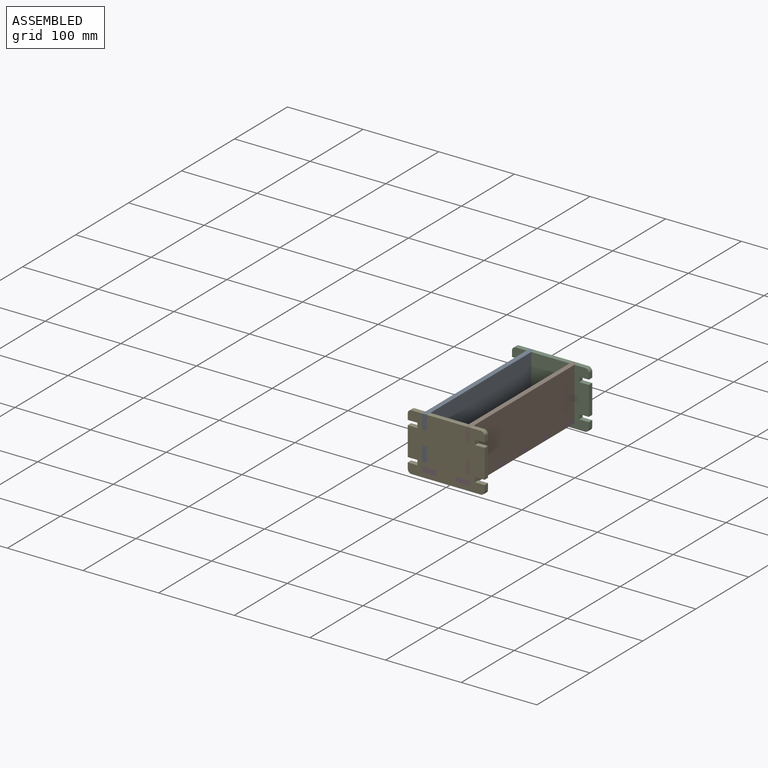
[diagram: assembled view]
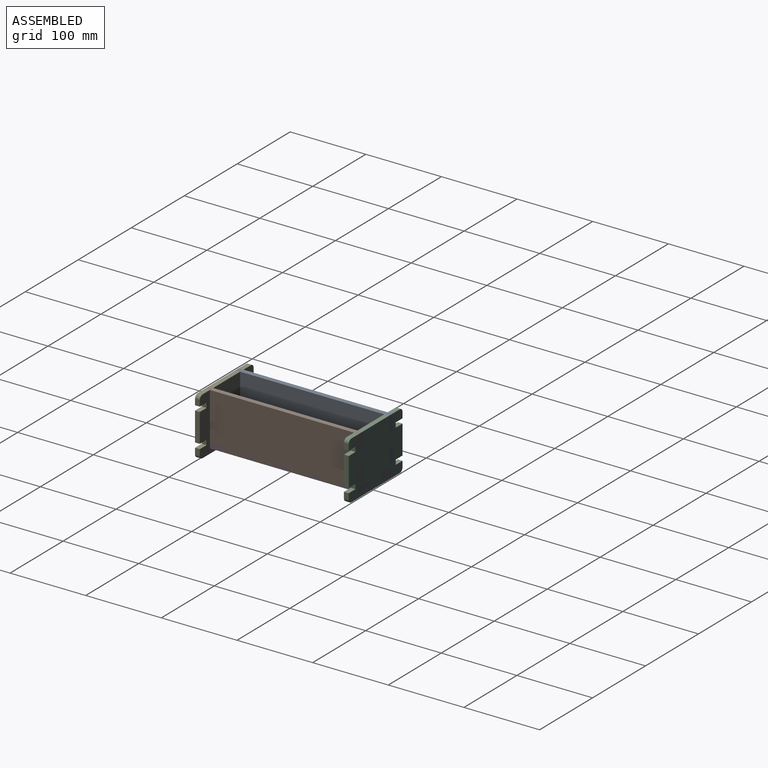
[diagram: assembled view, second angle]
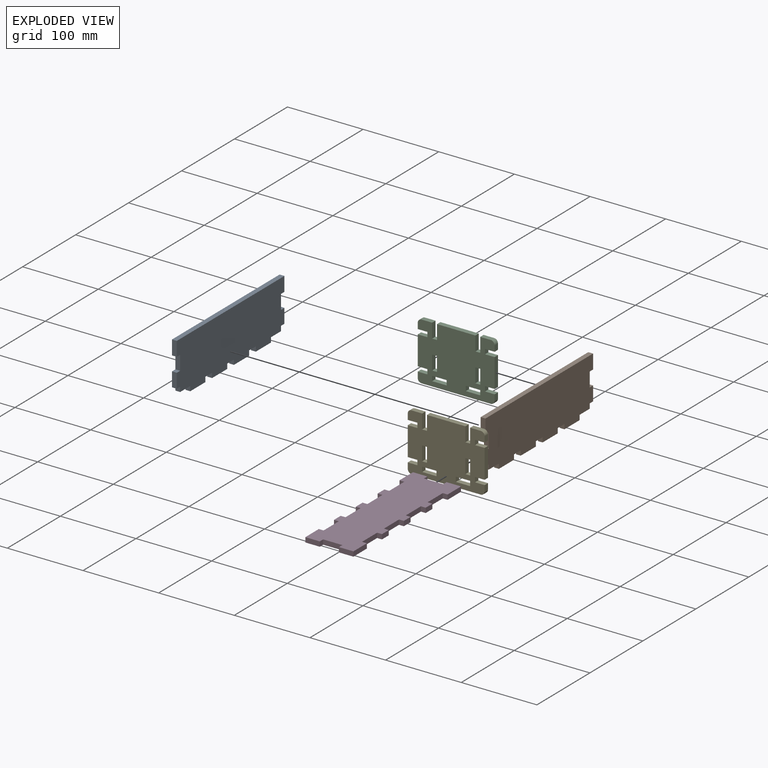
[diagram: exploded view]
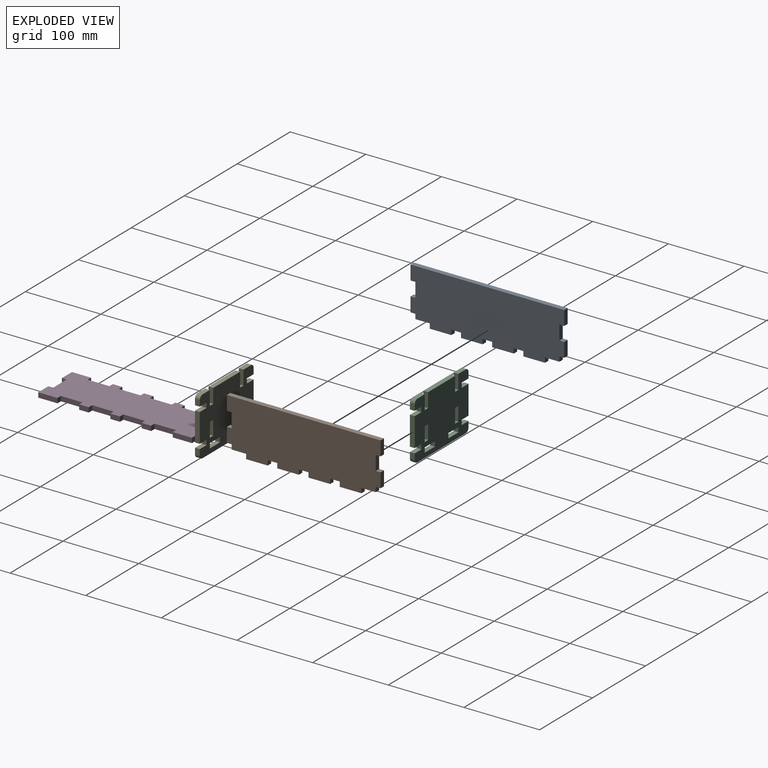
[diagram: exploded view, second angle]
ASSEMBLY  parts=5 mates=12
PART A: 34 faces, bbox 6.4x203.2x69.9 mm
  f0: plane 28.58x6.35mm, normal (0,0,-1), area 181.5mm2, adj f6,f7,f25,f30
  f1: plane 28.58x6.35mm, normal (0,0,-1), area 181.5mm2, adj f6,f7,f22,f24
  f2: plane 28.58x6.35mm, normal (0,0,-1), area 181.5mm2, adj f6,f7,f18,f21
  f3: plane 28.58x6.35mm, normal (0,0,-1), area 181.5mm2, adj f6,f7,f14,f20
  f4: plane 19.05x6.35mm, normal (0,1,0), area 121mm2, adj f6,f7,f12,f17
  f5: plane 19.05x6.35mm, normal (0,-1,0), area 121mm2, adj f6,f7,f27,f33
  f6: plane 203.2x69.85mm, normal (-1,0,0), area 13306.4mm2, adj f0,f1,f2,f3,f4,f5,f8,f9
  f7: plane 203.2x69.85mm, normal (1,0,0), area 13306.4mm2, adj f0,f1,f2,f3,f4,f5,f8,f9
  f8: plane 203.2x6.35mm, normal (0,0,1), area 1290.3mm2, adj f6,f7,f9,f10
  f9: plane 19.05x6.35mm, normal (0,1,0), area 121mm2, adj f6,f7,f8,f11
  f10: plane 19.05x6.35mm, normal (0,-1,0), area 121mm2, adj f6,f7,f8,f31
  f11: plane 6.35x6.35mm, normal (0,0,-1), area 40.3mm2, adj f6,f7,f9,f13
  f12: plane 6.35x6.35mm, normal (0,0,1), area 40.3mm2, adj f4,f6,f7,f13
  f13: plane 19.05x6.35mm, normal (0,1,0), area 121mm2, adj f6,f7,f11,f12
  f14: plane 6.35x6.35mm, normal (0,1,0), area 40.3mm2, adj f3,f6,f7,f15
  f15: plane 19.05x6.35mm, normal (0,0,-1), area 121mm2, adj f6,f7,f14,f16
  f16: plane 6.35x6.35mm, normal (0,1,0), area 40.3mm2, adj f6,f7,f15,f17
  f17: plane 6.35x6.35mm, normal (0,0,-1), area 40.3mm2, adj f4,f6,f7,f16
  f18: plane 6.35x6.35mm, normal (0,1,0), area 40.3mm2, adj f2,f6,f7,f19
  f19: plane 12.7x6.35mm, normal (0,0,-1), area 80.6mm2, adj f6,f7,f18,f20
  f20: plane 6.35x6.35mm, normal (0,-1,0), area 40.3mm2, adj f3,f6,f7,f19
  f21: plane 6.35x6.35mm, normal (0,-1,0), area 40.3mm2, adj f2,f6,f7,f23
  f22: plane 6.35x6.35mm, normal (0,1,0), area 40.3mm2, adj f1,f6,f7,f23
  f23: plane 12.7x6.35mm, normal (0,0,-1), area 80.6mm2, adj f6,f7,f21,f22
  f24: plane 6.35x6.35mm, normal (0,-1,0), area 40.3mm2, adj f1,f6,f7,f26
  f25: plane 6.35x6.35mm, normal (0,1,0), area 40.3mm2, adj f0,f6,f7,f26
  f26: plane 12.7x6.35mm, normal (0,0,-1), area 80.6mm2, adj f6,f7,f24,f25
  f27: plane 6.35x6.35mm, normal (0,0,-1), area 40.3mm2, adj f5,f6,f7,f28
  f28: plane 6.35x6.35mm, normal (0,-1,0), area 40.3mm2, adj f6,f7,f27,f29
  f29: plane 19.05x6.35mm, normal (0,0,-1), area 121mm2, adj f6,f7,f28,f30
  f30: plane 6.35x6.35mm, normal (0,-1,0), area 40.3mm2, adj f0,f6,f7,f29
  f31: plane 6.35x6.35mm, normal (0,0,-1), area 40.3mm2, adj f6,f7,f10,f32
  f32: plane 19.05x6.35mm, normal (0,-1,0), area 121mm2, adj f6,f7,f31,f33
  f33: plane 6.35x6.35mm, normal (0,0,1), area 40.3mm2, adj f5,f6,f7,f32
PART B: same geometry as A
PART C: 50 faces, bbox 101.6x6.4x76.2 mm
  f0: plane 50.8x6.35mm, normal (0,0,1), area 322.6mm2, adj f6,f7,f26,f43
  f1: plane 13.97x6.35mm, normal (0,0,1), area 88.7mm2, adj f6,f7,f24,f49
  f2: plane 7.62x6.35mm, normal (-1,0,0), area 48.4mm2, adj f6,f7,f19,f46
  f3: plane 38.1x6.35mm, normal (-1,0,0), area 241.9mm2, adj f6,f7,f13,f18
  f4: plane 7.62x6.35mm, normal (1,0,0), area 48.4mm2, adj f6,f7,f21,f48
  f5: plane 38.1x6.35mm, normal (1,0,0), area 241.9mm2, adj f6,f7,f15,f23
  f6: plane 101.6x76.2mm, normal (0,-1,0), area 6671.4mm2, adj f0,f1,f2,f3,f4,f5,f8,f9
  f7: plane 101.6x76.2mm, normal (0,1,0), area 6671.4mm2, adj f0,f1,f2,f3,f4,f5,f8,f9
  f8: plane 7.62x6.35mm, normal (-1,0,0), area 48.4mm2, adj f6,f7,f12,f49
  f9: plane 91.44x6.35mm, normal (0,0,-1), area 580.6mm2, adj f6,f7,f46,f47
  f10: plane 7.62x6.35mm, normal (1,0,0), area 48.4mm2, adj f6,f7,f17,f47
  f11: plane 13.97x6.35mm, normal (0,0,1), area 88.7mm2, adj f6,f7,f45,f48
  f12: plane 12.7x6.35mm, normal (0,0,-1), area 80.6mm2, adj f6,f7,f8,f14
  f13: plane 12.7x6.35mm, normal (0,0,1), area 80.6mm2, adj f3,f6,f7,f14
  f14: plane 6.35x6.35mm, normal (-1,0,0), area 40.3mm2, adj f6,f7,f12,f13
  f15: plane 12.7x6.35mm, normal (0,0,-1), area 80.6mm2, adj f5,f6,f7,f16
  f16: plane 6.35x6.35mm, normal (1,0,0), area 40.3mm2, adj f6,f7,f15,f17
  f17: plane 12.7x6.35mm, normal (0,0,1), area 80.6mm2, adj f6,f7,f10,f16
  f18: plane 12.7x6.35mm, normal (0,0,-1), area 80.6mm2, adj f3,f6,f7,f20
  f19: plane 12.7x6.35mm, normal (0,0,1), area 80.6mm2, adj f2,f6,f7,f20
  f20: plane 6.35x6.35mm, normal (-1,0,0), area 40.3mm2, adj f6,f7,f18,f19
  f21: plane 12.7x6.35mm, normal (0,0,-1), area 80.6mm2, adj f4,f6,f7,f22
  f22: plane 6.35x6.35mm, normal (1,0,0), area 40.3mm2, adj f6,f7,f21,f23
  f23: plane 12.7x6.35mm, normal (0,0,1), area 80.6mm2, adj f5,f6,f7,f22
  f24: plane 19.05x6.35mm, normal (1,0,0), area 121mm2, adj f1,f6,f7,f25
  f25: plane 6.35x6.35mm, normal (0,0,1), area 40.3mm2, adj f6,f7,f24,f26
  f26: plane 19.05x6.35mm, normal (-1,0,0), area 121mm2, adj f0,f6,f7,f25
  f27: plane 19.05x6.35mm, normal (1,0,0), area 121mm2, adj f6,f7,f28,f29
  f28: plane 6.35x6.35mm, normal (0,0,-1), area 40.3mm2, adj f6,f7,f27,f30
  f29: plane 6.35x6.35mm, normal (0,0,1), area 40.3mm2, adj f6,f7,f27,f30
  f30: plane 19.05x6.35mm, normal (-1,0,0), area 121mm2, adj f6,f7,f28,f29
  f31: plane 6.35x6.35mm, normal (1,0,0), area 40.3mm2, adj f6,f7,f32,f33
  f32: plane 19.05x6.35mm, normal (0,0,-1), area 121mm2, adj f6,f7,f31,f34
  f33: plane 19.05x6.35mm, normal (0,0,1), area 121mm2, adj f6,f7,f31,f34
  f34: plane 6.35x6.35mm, normal (-1,0,0), area 40.3mm2, adj f6,f7,f32,f33
  f35: plane 6.35x6.35mm, normal (1,0,0), area 40.3mm2, adj f6,f7,f36,f37
  f36: plane 19.05x6.35mm, normal (0,0,-1), area 121mm2, adj f6,f7,f35,f38
  f37: plane 19.05x6.35mm, normal (0,0,1), area 121mm2, adj f6,f7,f35,f38
  f38: plane 6.35x6.35mm, normal (-1,0,0), area 40.3mm2, adj f6,f7,f36,f37
  f39: plane 19.05x6.35mm, normal (1,0,0), area 121mm2, adj f6,f7,f40,f41
  f40: plane 6.35x6.35mm, normal (0,0,-1), area 40.3mm2, adj f6,f7,f39,f42
  f41: plane 6.35x6.35mm, normal (0,0,1), area 40.3mm2, adj f6,f7,f39,f42
  f42: plane 19.05x6.35mm, normal (-1,0,0), area 121mm2, adj f6,f7,f40,f41
  f43: plane 19.05x6.35mm, normal (1,0,0), area 121mm2, adj f0,f6,f7,f44
  f44: plane 6.35x6.35mm, normal (0,0,1), area 40.3mm2, adj f6,f7,f43,f45
  f45: plane 19.05x6.35mm, normal (-1,0,0), area 121mm2, adj f6,f7,f11,f44
  f46: cylinder r=5.08mm len=6.35mm, axis (0,1,0), area 50.7mm2, adj f2,f6,f7,f9
  f47: cylinder r=5.08mm len=6.35mm, axis (0,1,0), area 50.7mm2, adj f6,f7,f9,f10
  f48: cylinder r=5.08mm len=6.35mm, axis (0,1,0), area 50.7mm2, adj f4,f6,f7,f11
  f49: cylinder r=5.08mm len=6.35mm, axis (0,1,0), area 50.7mm2, adj f1,f6,f7,f8
PART D: 46 faces, bbox 63.5x203.2x6.4 mm
  f0: plane 25.4x6.35mm, normal (-1,0,0), area 161.3mm2, adj f8,f10,f11,f25
  f1: plane 12.7x6.35mm, normal (-1,0,0), area 80.6mm2, adj f10,f11,f22,f26
  f2: plane 12.7x6.35mm, normal (-1,0,0), area 80.6mm2, adj f10,f11,f19,f23
  f3: plane 12.7x6.35mm, normal (-1,0,0), area 80.6mm2, adj f10,f11,f16,f20
  f4: plane 12.7x6.35mm, normal (1,0,0), area 80.6mm2, adj f10,f11,f39,f40
  f5: plane 12.7x6.35mm, normal (1,0,0), area 80.6mm2, adj f10,f11,f36,f37
  f6: plane 12.7x6.35mm, normal (1,0,0), area 80.6mm2, adj f10,f11,f33,f34
  f7: plane 25.4x6.35mm, normal (1,0,0), area 161.3mm2, adj f10,f11,f14,f31
  f8: plane 19.05x6.35mm, normal (0,1,0), area 121mm2, adj f0,f10,f11,f28
  f9: plane 19.05x6.35mm, normal (0,-1,0), area 121mm2, adj f10,f11,f12,f44
  f10: plane 203.2x63.5mm, normal (0,0,1), area 11129mm2, adj f0,f1,f2,f3,f4,f5,f6,f7
  f11: plane 203.2x63.5mm, normal (0,0,-1), area 11129mm2, adj f0,f1,f2,f3,f4,f5,f6,f7
  f12: plane 25.4x6.35mm, normal (-1,0,0), area 161.3mm2, adj f9,f10,f11,f17
  f13: plane 25.4x6.35mm, normal (1,0,0), area 161.3mm2, adj f10,f11,f15,f42
  f14: plane 19.05x6.35mm, normal (0,1,0), area 121mm2, adj f7,f10,f11,f30
  f15: plane 19.05x6.35mm, normal (0,-1,0), area 121mm2, adj f10,f11,f13,f45
  f16: plane 6.35x6.35mm, normal (0,-1,0), area 40.3mm2, adj f3,f10,f11,f18
  f17: plane 6.35x6.35mm, normal (0,1,0), area 40.3mm2, adj f10,f11,f12,f18
  f18: plane 28.58x6.35mm, normal (-1,0,0), area 181.5mm2, adj f10,f11,f16,f17
  f19: plane 6.35x6.35mm, normal (0,-1,0), area 40.3mm2, adj f2,f10,f11,f21
  f20: plane 6.35x6.35mm, normal (0,1,0), area 40.3mm2, adj f3,f10,f11,f21
  f21: plane 28.58x6.35mm, normal (-1,0,0), area 181.5mm2, adj f10,f11,f19,f20
  f22: plane 6.35x6.35mm, normal (0,-1,0), area 40.3mm2, adj f1,f10,f11,f24
  f23: plane 6.35x6.35mm, normal (0,1,0), area 40.3mm2, adj f2,f10,f11,f24
  f24: plane 28.58x6.35mm, normal (-1,0,0), area 181.5mm2, adj f10,f11,f22,f23
  f25: plane 6.35x6.35mm, normal (0,-1,0), area 40.3mm2, adj f0,f10,f11,f27
  f26: plane 6.35x6.35mm, normal (0,1,0), area 40.3mm2, adj f1,f10,f11,f27
  f27: plane 28.58x6.35mm, normal (-1,0,0), area 181.5mm2, adj f10,f11,f25,f26
  f28: plane 6.35x6.35mm, normal (1,0,0), area 40.3mm2, adj f8,f10,f11,f29
  f29: plane 25.4x6.35mm, normal (0,1,0), area 161.3mm2, adj f10,f11,f28,f30
  f30: plane 6.35x6.35mm, normal (-1,0,0), area 40.3mm2, adj f10,f11,f14,f29
  f31: plane 6.35x6.35mm, normal (0,-1,0), area 40.3mm2, adj f7,f10,f11,f32
  f32: plane 28.58x6.35mm, normal (1,0,0), area 181.5mm2, adj f10,f11,f31,f33
  f33: plane 6.35x6.35mm, normal (0,1,0), area 40.3mm2, adj f6,f10,f11,f32
  f34: plane 6.35x6.35mm, normal (0,-1,0), area 40.3mm2, adj f6,f10,f11,f35
  f35: plane 28.58x6.35mm, normal (1,0,0), area 181.5mm2, adj f10,f11,f34,f36
  f36: plane 6.35x6.35mm, normal (0,1,0), area 40.3mm2, adj f5,f10,f11,f35
  f37: plane 6.35x6.35mm, normal (0,-1,0), area 40.3mm2, adj f5,f10,f11,f38
  f38: plane 28.58x6.35mm, normal (1,0,0), area 181.5mm2, adj f10,f11,f37,f39
  f39: plane 6.35x6.35mm, normal (0,1,0), area 40.3mm2, adj f4,f10,f11,f38
  f40: plane 6.35x6.35mm, normal (0,-1,0), area 40.3mm2, adj f4,f10,f11,f41
  f41: plane 28.58x6.35mm, normal (1,0,0), area 181.5mm2, adj f10,f11,f40,f42
  f42: plane 6.35x6.35mm, normal (0,1,0), area 40.3mm2, adj f10,f11,f13,f41
  f43: plane 25.4x6.35mm, normal (0,-1,0), area 161.3mm2, adj f10,f11,f44,f45
  f44: plane 6.35x6.35mm, normal (1,0,0), area 40.3mm2, adj f9,f10,f11,f43
  f45: plane 6.35x6.35mm, normal (-1,0,0), area 40.3mm2, adj f10,f11,f15,f43
PART E: same geometry as C
PLACE A t=(-50.8,6.35,-38.45)mm
PLACE B t=(6.35,6.35,-38.45)mm
PLACE C t=(-50.8,203.2,-38.45)mm
PLACE D t=(-50.8,6.35,-38.45)mm
PLACE E t=(-50.8,6.35,-38.45)mm
MATE planar E.f6 <-> B.f5  axis (0,-1,0) through (0,0,0)mm
MATE planar B.f6 <-> C.f43  axis (-1,0,0) through (25.4,101.6,4.22)mm
MATE planar A.f6 <-> E.f24  axis (-1,0,0) through (-31.75,101.6,4.22)mm
MATE planar E.f7 <-> D.f43  axis (0,1,0) through (0,6.35,0)mm
MATE planar C.f7 <-> D.f8  axis (0,1,0) through (0,203.2,0)mm
MATE planar D.f11 <-> E.f33  axis (0,0,-1) through (0,101.6,-32.1)mm
MATE planar E.f0 <-> B.f8  axis (0,0,1) through (0,3.18,37.75)mm
MATE planar E.f6 <-> A.f5  axis (0,-1,0) through (0,0,0)mm
MATE planar C.f0 <-> B.f8  axis (0,0,1) through (0,200.03,37.75)mm
MATE planar E.f43 <-> B.f6  axis (1,0,0) through (25.4,3.18,28.23)mm
MATE planar D.f12 <-> E.f31  axis (-1,0,0) through (-31.75,12.7,-28.92)mm
MATE planar D.f10 <-> A.f23  axis (0,0,1) through (0,101.6,-25.75)mm
